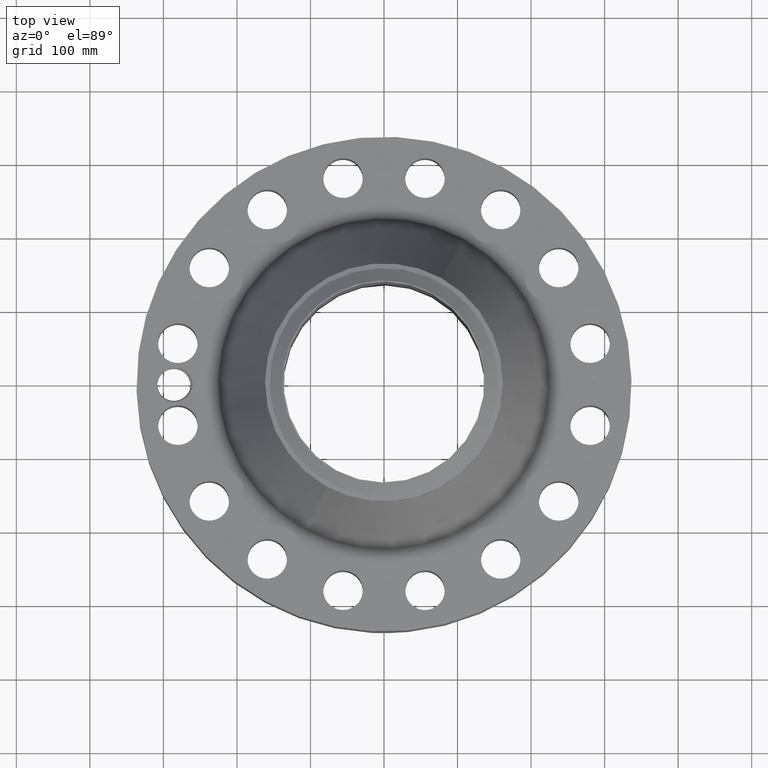
[diagram: clean part render]
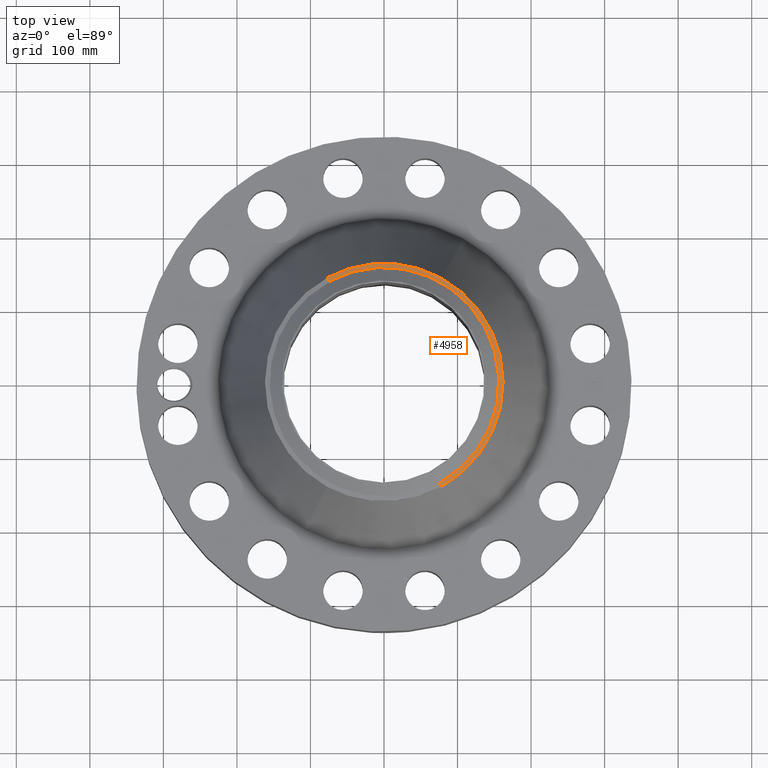
[diagram: same view with one face highlighted and labeled with its STEP entity id]
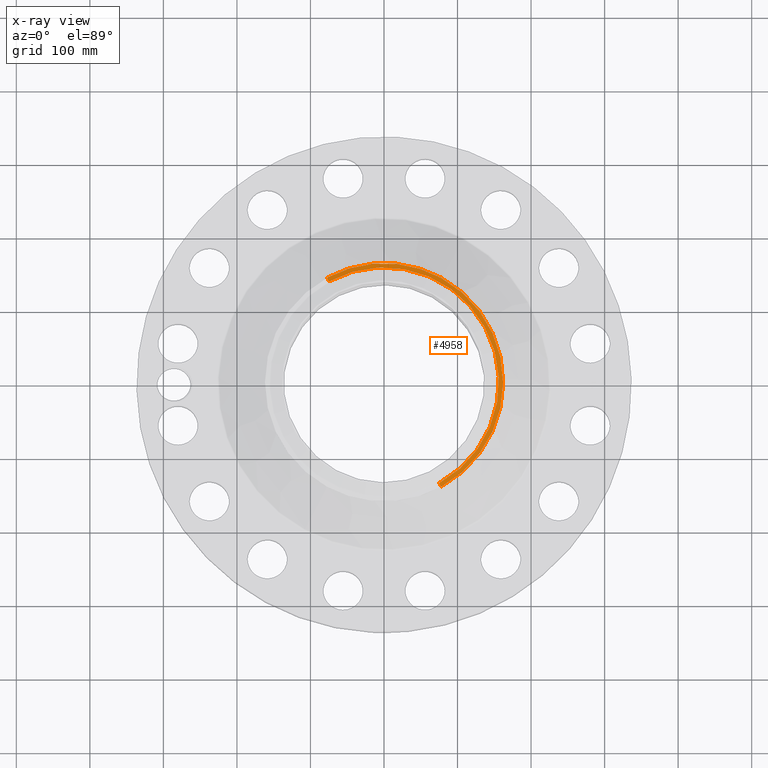
[diagram: x-ray of the same camera — body ghosted, the highlighted face saturated]
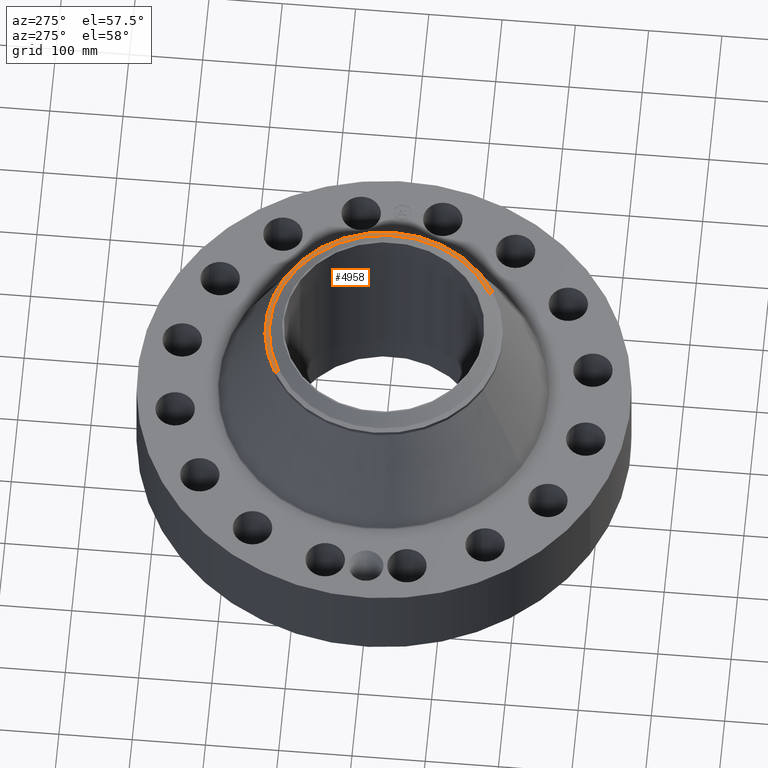
[diagram: same view with one face highlighted and labeled with its STEP entity id]
A machine part, top view. The second image highlights one B-rep face of the part: STEP entity #4958.
The next image is the same camera in x-ray: the body ghosted, the highlighted face saturated — about 0% of this face is hidden behind the body in this view.
A second angle (auxiliary view) of the same face is appended — the face is thin or edge-on in the first view.
In plain terms, the highlighted conical surface has half-angle 80 deg.
Its self-contained STEP definition (entity closure, byte-faithful):
#3752=AXIS2_PLACEMENT_3D('Circle Axis2P3D',#3750,#3751,$) ;
#3779=AXIS2_PLACEMENT_3D('Circle Axis2P3D',#3777,#3778,$) ;
#4930=AXIS2_PLACEMENT_3D('Cone Axis2P3D',#4927,#4928,#4929) ;
#4941=AXIS2_PLACEMENT_3D('Circle Axis2P3D',#4939,#4940,$) ;
#3747=CARTESIAN_POINT('Vertex',(3.05633780861,5.59458883207,10.8120058476)) ;
#3750=CARTESIAN_POINT('Axis2P3D Location',(0.,0.,10.8120058476)) ;
#3754=CARTESIAN_POINT('Vertex',(3.05633780861,-5.59458883207,10.8120058476)) ;
#3774=CARTESIAN_POINT('Vertex',(-3.05633780861,5.59458883207,10.8120058476)) ;
#3777=CARTESIAN_POINT('Axis2P3D Location',(0.,0.,10.8120058476)) ;
#4927=CARTESIAN_POINT('Axis2P3D Location',(0.,0.,10.8514160193)) ;
#4932=CARTESIAN_POINT('Line Origine',(-3.00276052083,5.49651626463,10.8317109334)) ;
#4936=CARTESIAN_POINT('Vertex',(-2.94918323305,5.39844369719,10.8514160193)) ;
#4939=CARTESIAN_POINT('Axis2P3D Location',(0.,0.,10.8514160193)) ;
#4943=CARTESIAN_POINT('Vertex',(2.94918323305,-5.39844369719,10.8514160193)) ;
#4946=CARTESIAN_POINT('Line Origine',(3.00276052083,-5.49651626463,10.8317109334)) ;
#3751=DIRECTION('Axis2P3D Direction',(0.,0.,-0.0393700787402)) ;
#3778=DIRECTION('Axis2P3D Direction',(0.,0.,-0.0393700787402)) ;
#4928=DIRECTION('Axis2P3D Direction',(-0.,-0.,-0.0393700787402)) ;
#4929=DIRECTION('Axis2P3D XDirection',(0.0188750212049,-0.0345504945626,0.)) ;
#4933=DIRECTION('Vector Direction',(-0.0185882672208,0.0340255949157,-0.00683654242783)) ;
#4940=DIRECTION('Axis2P3D Direction',(0.,0.,-0.0393700787402)) ;
#4947=DIRECTION('Vector Direction',(0.0185882672208,-0.0340255949157,-0.00683654242783)) ;
#4934=VECTOR('Line Direction',#4933,0.0393700787402) ;
#4948=VECTOR('Line Direction',#4947,0.0393700787402) ;
#4952=ORIENTED_EDGE('',*,*,#4938,.F.) ;
#4953=ORIENTED_EDGE('',*,*,#4945,.F.) ;
#4954=ORIENTED_EDGE('',*,*,#4950,.T.) ;
#4955=ORIENTED_EDGE('',*,*,#3756,.T.) ;
#4956=ORIENTED_EDGE('',*,*,#3781,.F.) ;
#4958=ADVANCED_FACE('PartBody',(#4957),#4931,.T.) ;
#3753=CIRCLE('generated circle',#3752,6.37500000003) ;
#3780=CIRCLE('generated circle',#3779,6.37500000003) ;
#4942=CIRCLE('generated circle',#4941,6.15149380995) ;
#4931=CONICAL_SURFACE('Cone',#4930,6.15149380995,1.3962634016) ;
#3756=EDGE_CURVE('',#3755,#3748,#3753,.F.) ;
#3781=EDGE_CURVE('',#3775,#3748,#3780,.T.) ;
#4938=EDGE_CURVE('',#4937,#3775,#4935,.T.) ;
#4945=EDGE_CURVE('',#4944,#4937,#4942,.F.) ;
#4950=EDGE_CURVE('',#4944,#3755,#4949,.T.) ;
#4951=EDGE_LOOP('',(#4952,#4953,#4954,#4955,#4956)) ;
#4957=FACE_OUTER_BOUND('',#4951,.T.) ;
#4935=LINE('Line',#4932,#4934) ;
#4949=LINE('Line',#4946,#4948) ;
#3748=VERTEX_POINT('',#3747) ;
#3755=VERTEX_POINT('',#3754) ;
#3775=VERTEX_POINT('',#3774) ;
#4937=VERTEX_POINT('',#4936) ;
#4944=VERTEX_POINT('',#4943) ;